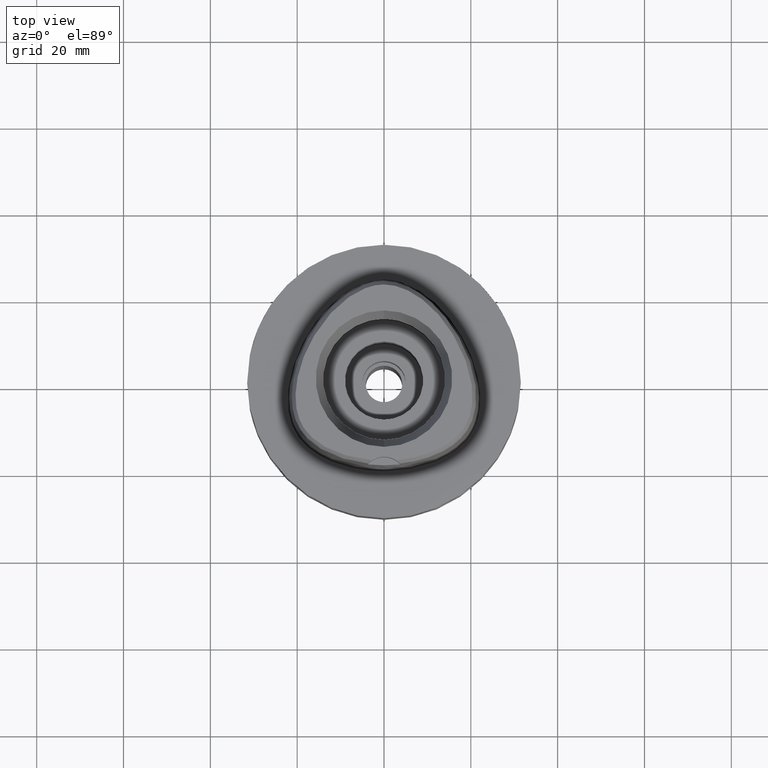
[diagram: clean part render]
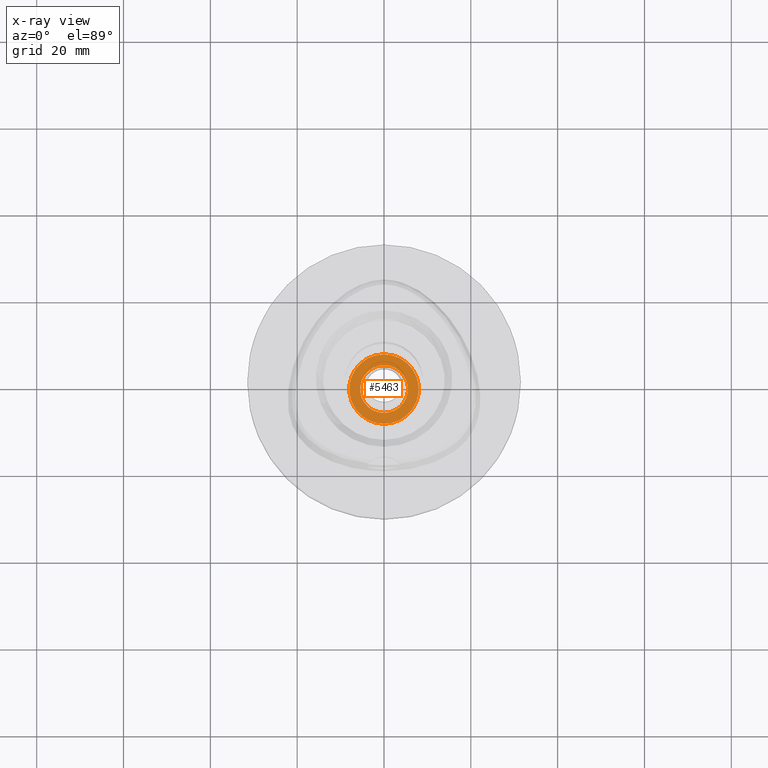
[diagram: x-ray — body ghosted, one internal face saturated and labeled with its STEP entity id]
A machine part, top view, then the same camera in x-ray: the body is ghosted and one INTERNAL B-rep face — a face not visible from any outside direction — is saturated and labeled: STEP entity #5463.
In plain terms, the highlighted planar face has unit normal (0, 0, -1).
Its self-contained STEP definition (entity closure, byte-faithful):
#83 = ORIENTED_EDGE ( 'NONE', *, *, #334, .F. ) ;
#261 = PLANE ( 'NONE',  #4273 ) ;
#334 = EDGE_CURVE ( 'NONE', #583, #1841, #3871, .T. ) ;
#583 = VERTEX_POINT ( 'NONE', #1158 ) ;
#672 = ORIENTED_EDGE ( 'NONE', *, *, #2884, .F. ) ;
#685 = EDGE_LOOP ( 'NONE', ( #83, #1824 ) ) ;
#1022 = DIRECTION ( 'NONE',  ( 0.0000000000000000000, 1.000000000000000000, 0.0000000000000000000 ) ) ;
#1086 = AXIS2_PLACEMENT_3D ( 'NONE', #5474, #4928, #1103 ) ;
#1103 = DIRECTION ( 'NONE',  ( 0.0000000000000000000, 1.000000000000000000, 0.0000000000000000000 ) ) ;
#1158 = CARTESIAN_POINT ( 'NONE',  ( 0.0000000000000000000, 5.500000000000000000, -7.799999999999999822 ) ) ;
#1167 = DIRECTION ( 'NONE',  ( 0.0000000000000000000, -1.000000000000000000, 0.0000000000000000000 ) ) ;
#1225 = CIRCLE ( 'NONE', #1490, 5.500000000000000000 ) ;
#1252 = FACE_BOUND ( 'NONE', #685, .T. ) ;
#1419 = CARTESIAN_POINT ( 'NONE',  ( 0.0000000000000000000, -5.500000000000000000, -7.799999999999999822 ) ) ;
#1447 = CARTESIAN_POINT ( 'NONE',  ( 0.0000000000000000000, 0.0000000000000000000, -7.799999999999999822 ) ) ;
#1490 = AXIS2_PLACEMENT_3D ( 'NONE', #5513, #3828, #1640 ) ;
#1518 = EDGE_LOOP ( 'NONE', ( #672, #4289 ) ) ;
#1640 = DIRECTION ( 'NONE',  ( 0.0000000000000000000, -1.000000000000000000, 0.0000000000000000000 ) ) ;
#1824 = ORIENTED_EDGE ( 'NONE', *, *, #5323, .F. ) ;
#1841 = VERTEX_POINT ( 'NONE', #1419 ) ;
#2159 = EDGE_CURVE ( 'NONE', #2610, #4301, #4061, .T. ) ;
#2264 = DIRECTION ( 'NONE',  ( 0.0000000000000000000, 0.0000000000000000000, -1.000000000000000000 ) ) ;
#2276 = CIRCLE ( 'NONE', #4705, 8.000000000000000000 ) ;
#2348 = DIRECTION ( 'NONE',  ( 0.0000000000000000000, -1.000000000000000000, 0.0000000000000000000 ) ) ;
#2492 = CARTESIAN_POINT ( 'NONE',  ( 0.0000000000000000000, -8.000000000000000000, -7.799999999999999822 ) ) ;
#2525 = FACE_OUTER_BOUND ( 'NONE', #1518, .T. ) ;
#2610 = VERTEX_POINT ( 'NONE', #2492 ) ;
#2884 = EDGE_CURVE ( 'NONE', #4301, #2610, #2276, .T. ) ;
#3690 = CARTESIAN_POINT ( 'NONE',  ( 0.0000000000000000000, 0.0000000000000000000, -7.799999999999999822 ) ) ;
#3828 = DIRECTION ( 'NONE',  ( 0.0000000000000000000, 0.0000000000000000000, 1.000000000000000000 ) ) ;
#3871 = CIRCLE ( 'NONE', #1086, 5.500000000000000000 ) ;
#4003 = CARTESIAN_POINT ( 'NONE',  ( 0.0000000000000000000, 0.0000000000000000000, -7.799999999999999822 ) ) ;
#4053 = DIRECTION ( 'NONE',  ( 0.0000000000000000000, 0.0000000000000000000, -1.000000000000000000 ) ) ;
#4061 = CIRCLE ( 'NONE', #4875, 8.000000000000000000 ) ;
#4094 = CARTESIAN_POINT ( 'NONE',  ( 0.0000000000000000000, 8.000000000000000000, -7.799999999999999822 ) ) ;
#4228 = DIRECTION ( 'NONE',  ( 0.0000000000000000000, 0.0000000000000000000, -1.000000000000000000 ) ) ;
#4273 = AXIS2_PLACEMENT_3D ( 'NONE', #3690, #4228, #1167 ) ;
#4289 = ORIENTED_EDGE ( 'NONE', *, *, #2159, .F. ) ;
#4301 = VERTEX_POINT ( 'NONE', #4094 ) ;
#4705 = AXIS2_PLACEMENT_3D ( 'NONE', #1447, #2264, #1022 ) ;
#4875 = AXIS2_PLACEMENT_3D ( 'NONE', #4003, #4053, #2348 ) ;
#4928 = DIRECTION ( 'NONE',  ( 0.0000000000000000000, 0.0000000000000000000, 1.000000000000000000 ) ) ;
#5323 = EDGE_CURVE ( 'NONE', #1841, #583, #1225, .T. ) ;
#5463 = ADVANCED_FACE ( 'NONE', ( #2525, #1252 ), #261, .F. ) ;
#5474 = CARTESIAN_POINT ( 'NONE',  ( 0.0000000000000000000, 0.0000000000000000000, -7.799999999999999822 ) ) ;
#5513 = CARTESIAN_POINT ( 'NONE',  ( 0.0000000000000000000, 0.0000000000000000000, -7.799999999999999822 ) ) ;